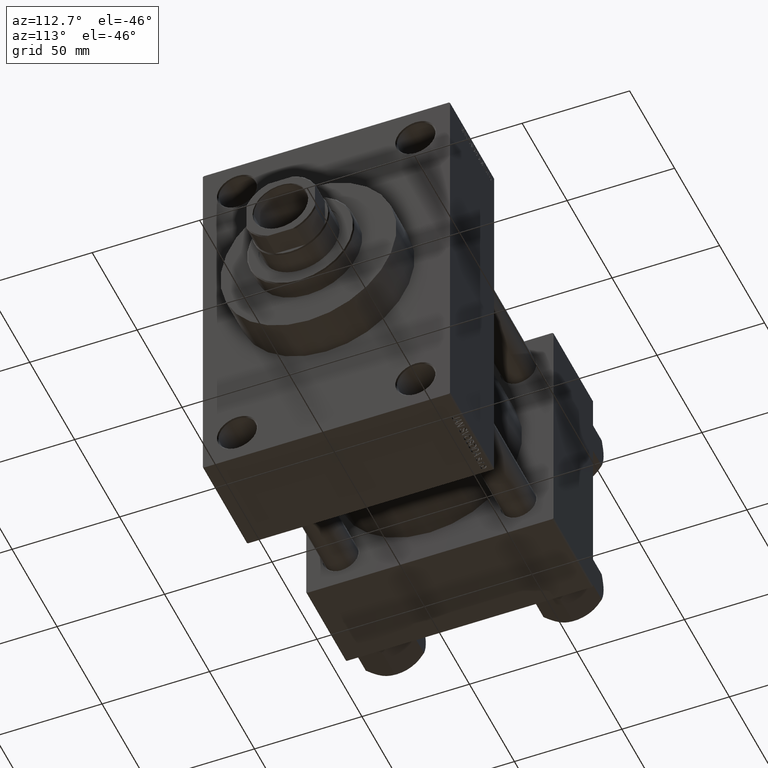
[diagram: clean part render]
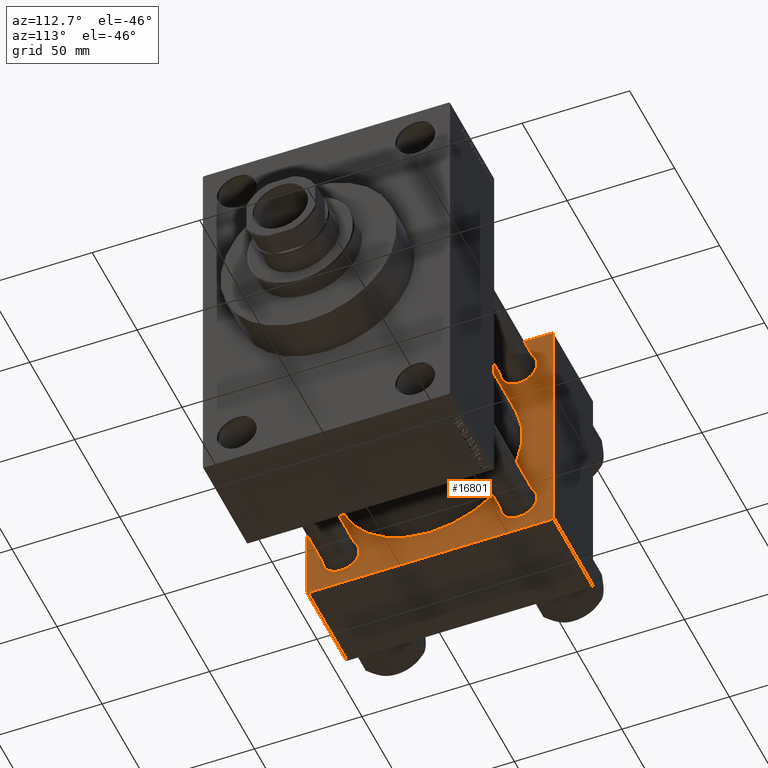
[diagram: same view with one face highlighted and labeled with its STEP entity id]
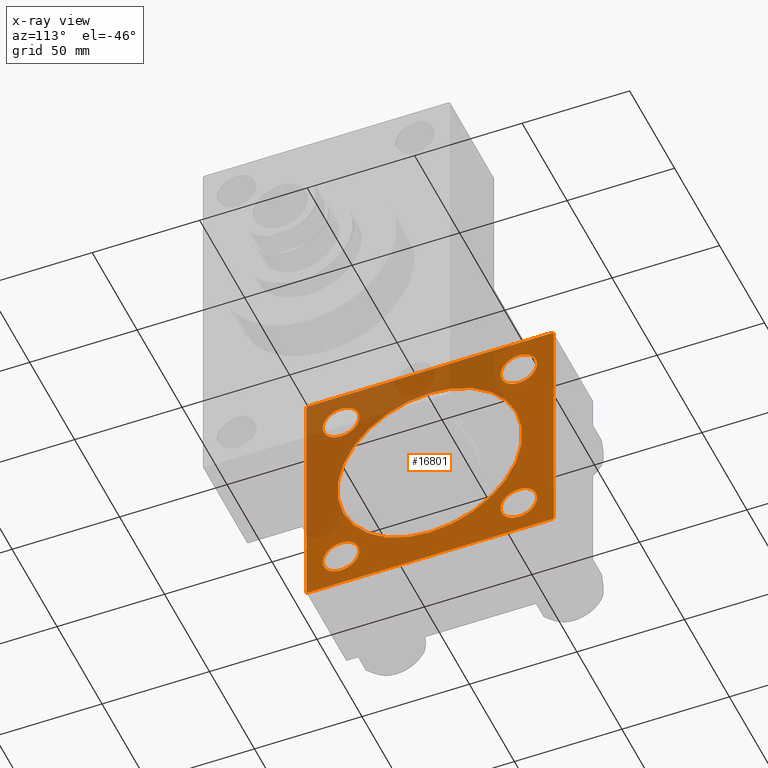
[diagram: x-ray of the same camera — body ghosted, the highlighted face saturated]
A machine part, auxiliary view. The second image highlights one B-rep face of the part: STEP entity #16801.
The next image is the same camera in x-ray: the body ghosted, the highlighted face saturated — about 40% of this face is hidden behind the body in this view.
In plain terms, the highlighted planar face has unit normal (-1, 0, 0).
Its self-contained STEP definition (entity closure, byte-faithful):
#330 = VERTEX_POINT ( 'NONE', #25858 ) ;
#537 = EDGE_CURVE ( 'NONE', #330, #14295, #23865, .T. ) ;
#1250 = CARTESIAN_POINT ( 'NONE',  ( 44.00000000000000000, 57.50000000000000000, 57.50000000000001421 ) ) ;
#1740 = ORIENTED_EDGE ( 'NONE', *, *, #46349, .T. ) ;
#1831 = EDGE_LOOP ( 'NONE', ( #18331, #23161 ) ) ;
#2053 = VECTOR ( 'NONE', #33884, 1000.000000000000000 ) ;
#2339 = ORIENTED_EDGE ( 'NONE', *, *, #44904, .T. ) ;
#2384 = EDGE_LOOP ( 'NONE', ( #39655, #42381 ) ) ;
#2553 = DIRECTION ( 'NONE',  ( 0.000000000000000000, 0.000000000000000000, 1.000000000000000000 ) ) ;
#2824 = AXIS2_PLACEMENT_3D ( 'NONE', #36778, #14106, #28805 ) ;
#2885 = FACE_BOUND ( 'NONE', #2384, .T. ) ;
#3036 = CARTESIAN_POINT ( 'NONE',  ( 44.00000000000000000, -41.34999999999998721, -41.35000000000000142 ) ) ;
#3360 = PLANE ( 'NONE',  #29035 ) ;
#3603 = DIRECTION ( 'NONE',  ( 0.000000000000000000, 0.000000000000000000, 1.000000000000000000 ) ) ;
#3916 = LINE ( 'NONE', #18387, #14370 ) ;
#4354 = DIRECTION ( 'NONE',  ( -1.000000000000000000, 0.000000000000000000, -0.000000000000000000 ) ) ;
#4526 = VERTEX_POINT ( 'NONE', #9548 ) ;
#4572 = ORIENTED_EDGE ( 'NONE', *, *, #15177, .T. ) ;
#4839 = ORIENTED_EDGE ( 'NONE', *, *, #23989, .T. ) ;
#5426 = VECTOR ( 'NONE', #41047, 999.9999999999998863 ) ;
#5695 = CARTESIAN_POINT ( 'NONE',  ( 44.00000000000000000, -41.34999999999998721, -49.85000000000009379 ) ) ;
#5780 = EDGE_LOOP ( 'NONE', ( #1740, #44153 ) ) ;
#5912 = CIRCLE ( 'NONE', #15917, 8.500000000000090594 ) ;
#6033 = DIRECTION ( 'NONE',  ( -0.000000000000000000, 0.000000000000000000, 1.000000000000000000 ) ) ;
#6560 = EDGE_CURVE ( 'NONE', #19290, #4526, #8264, .T. ) ;
#6594 = ORIENTED_EDGE ( 'NONE', *, *, #20691, .F. ) ;
#6885 = EDGE_LOOP ( 'NONE', ( #42268, #2339 ) ) ;
#7137 = VERTEX_POINT ( 'NONE', #17330 ) ;
#7621 = CIRCLE ( 'NONE', #18395, 8.500000000000090594 ) ;
#8217 = CARTESIAN_POINT ( 'NONE',  ( 44.00000000000000000, -41.34999999999998721, 41.35000000000000142 ) ) ;
#8232 = LINE ( 'NONE', #11629, #5426 ) ;
#8264 = LINE ( 'NONE', #11893, #32527 ) ;
#8823 = CIRCLE ( 'NONE', #14980, 8.500000000000090594 ) ;
#9068 = DIRECTION ( 'NONE',  ( 0.000000000000000000, -0.7071067811865573427, 0.7071067811865376918 ) ) ;
#9548 = CARTESIAN_POINT ( 'NONE',  ( 44.00000000000000000, -57.49999999999999289, -57.00000000000003553 ) ) ;
#10023 = AXIS2_PLACEMENT_3D ( 'NONE', #16594, #26969, #12513 ) ;
#10053 = CARTESIAN_POINT ( 'NONE',  ( 44.00000000000000000, 41.34999999999999432, -32.84999999999990905 ) ) ;
#10069 = VERTEX_POINT ( 'NONE', #31197 ) ;
#11300 = EDGE_CURVE ( 'NONE', #21889, #10069, #8823, .T. ) ;
#11400 = DIRECTION ( 'NONE',  ( 0.000000000000000000, -1.000000000000000000, -1.206764157201257291E-16 ) ) ;
#11629 = CARTESIAN_POINT ( 'NONE',  ( 44.00000000000000000, -57.50000000000000000, 56.99999999999997868 ) ) ;
#11893 = CARTESIAN_POINT ( 'NONE',  ( 44.00000000000000000, -57.50000000000000000, 57.49999999999999289 ) ) ;
#12123 = ORIENTED_EDGE ( 'NONE', *, *, #33377, .F. ) ;
#12344 = CARTESIAN_POINT ( 'NONE',  ( 44.00000000000000000, 57.00000000000002842, -57.49999999999999289 ) ) ;
#12513 = DIRECTION ( 'NONE',  ( 0.000000000000000000, 0.000000000000000000, 1.000000000000000000 ) ) ;
#12794 = ORIENTED_EDGE ( 'NONE', *, *, #44796, .F. ) ;
#12925 = LINE ( 'NONE', #35101, #47590 ) ;
#12953 = DIRECTION ( 'NONE',  ( -1.000000000000000000, 0.000000000000000000, -0.000000000000000000 ) ) ;
#13332 = DIRECTION ( 'NONE',  ( -0.000000000000000000, 0.7071067811865328068, 0.7071067811865622277 ) ) ;
#13380 = DIRECTION ( 'NONE',  ( -1.000000000000000000, 0.000000000000000000, -0.000000000000000000 ) ) ;
#13543 = VERTEX_POINT ( 'NONE', #35127 ) ;
#13642 = EDGE_LOOP ( 'NONE', ( #6594, #46794, #41961, #4839, #4572, #35463, #32631, #25064 ) ) ;
#13704 = AXIS2_PLACEMENT_3D ( 'NONE', #3036, #12953, #42608 ) ;
#14106 = DIRECTION ( 'NONE',  ( 1.000000000000000000, -0.000000000000000000, 0.000000000000000000 ) ) ;
#14138 = VERTEX_POINT ( 'NONE', #10053 ) ;
#14295 = VERTEX_POINT ( 'NONE', #17051 ) ;
#14370 = VECTOR ( 'NONE', #11400, 1000.000000000000000 ) ;
#14980 = AXIS2_PLACEMENT_3D ( 'NONE', #8217, #4354, #36267 ) ;
#15069 = LINE ( 'NONE', #33640, #2053 ) ;
#15177 = EDGE_CURVE ( 'NONE', #23922, #23983, #46694, .T. ) ;
#15464 = CIRCLE ( 'NONE', #41641, 8.500000000000090594 ) ;
#15917 = AXIS2_PLACEMENT_3D ( 'NONE', #20840, #13380, #32179 ) ;
#15951 = DIRECTION ( 'NONE',  ( 0.000000000000000000, 0.000000000000000000, -1.000000000000000000 ) ) ;
#16203 = LINE ( 'NONE', #1250, #20761 ) ;
#16435 = EDGE_CURVE ( 'NONE', #14138, #33046, #5912, .T. ) ;
#16594 = CARTESIAN_POINT ( 'NONE',  ( 44.00000000000000000, -41.34999999999998721, 41.35000000000000142 ) ) ;
#16801 = ADVANCED_FACE ( 'NONE', ( #47239, #17124, #43160, #2885, #24345, #17589 ), #3360, .F. ) ;
#16950 = CARTESIAN_POINT ( 'NONE',  ( 44.00000000000000000, 57.50000000000000000, -57.00000000000000000 ) ) ;
#17051 = CARTESIAN_POINT ( 'NONE',  ( 44.00000000000000000, 41.34999999999999432, 32.84999999999990905 ) ) ;
#17124 = FACE_BOUND ( 'NONE', #5780, .T. ) ;
#17330 = CARTESIAN_POINT ( 'NONE',  ( 44.00000000000000000, -2.602085213965210642E-15, 43.00000000000000000 ) ) ;
#17589 = FACE_OUTER_BOUND ( 'NONE', #13642, .T. ) ;
#18331 = ORIENTED_EDGE ( 'NONE', *, *, #36445, .T. ) ;
#18387 = CARTESIAN_POINT ( 'NONE',  ( 44.00000000000000000, 57.50000000000000000, -57.49999999999999289 ) ) ;
#18395 = AXIS2_PLACEMENT_3D ( 'NONE', #25311, #36649, #3603 ) ;
#18787 = DIRECTION ( 'NONE',  ( -1.000000000000000000, 0.000000000000000000, -0.000000000000000000 ) ) ;
#19032 = DIRECTION ( 'NONE',  ( 0.000000000000000000, 0.000000000000000000, 1.000000000000000000 ) ) ;
#19290 = VERTEX_POINT ( 'NONE', #35338 ) ;
#20038 = CIRCLE ( 'NONE', #10023, 8.500000000000090594 ) ;
#20691 = EDGE_CURVE ( 'NONE', #41435, #36304, #3916, .T. ) ;
#20761 = VECTOR ( 'NONE', #15951, 1000.000000000000000 ) ;
#20772 = AXIS2_PLACEMENT_3D ( 'NONE', #35970, #32120, #22631 ) ;
#20840 = CARTESIAN_POINT ( 'NONE',  ( 44.00000000000000000, 41.34999999999999432, -41.34999999999999432 ) ) ;
#21662 = CIRCLE ( 'NONE', #39417, 8.500000000000090594 ) ;
#21826 = CARTESIAN_POINT ( 'NONE',  ( 44.00000000000000000, -41.34999999999998721, 32.84999999999991616 ) ) ;
#21889 = VERTEX_POINT ( 'NONE', #21826 ) ;
#22631 = DIRECTION ( 'NONE',  ( 0.000000000000000000, 0.000000000000000000, 1.000000000000000000 ) ) ;
#22810 = VECTOR ( 'NONE', #43088, 1000.000000000000000 ) ;
#23161 = ORIENTED_EDGE ( 'NONE', *, *, #31704, .T. ) ;
#23865 = CIRCLE ( 'NONE', #39289, 8.500000000000090594 ) ;
#23922 = VERTEX_POINT ( 'NONE', #43624 ) ;
#23983 = VERTEX_POINT ( 'NONE', #38733 ) ;
#23989 = EDGE_CURVE ( 'NONE', #37876, #23922, #12925, .T. ) ;
#24345 = FACE_BOUND ( 'NONE', #27137, .T. ) ;
#25064 = ORIENTED_EDGE ( 'NONE', *, *, #33428, .T. ) ;
#25311 = CARTESIAN_POINT ( 'NONE',  ( 44.00000000000000000, 41.34999999999999432, 41.34999999999999432 ) ) ;
#25858 = CARTESIAN_POINT ( 'NONE',  ( 44.00000000000000000, 41.34999999999999432, 49.85000000000008669 ) ) ;
#26920 = CARTESIAN_POINT ( 'NONE',  ( 44.00000000000000000, 41.34999999999999432, -49.85000000000008669 ) ) ;
#26969 = DIRECTION ( 'NONE',  ( -1.000000000000000000, 0.000000000000000000, -0.000000000000000000 ) ) ;
#27137 = EDGE_LOOP ( 'NONE', ( #12794, #12123 ) ) ;
#27308 = EDGE_CURVE ( 'NONE', #37876, #42506, #16203, .T. ) ;
#27888 = CARTESIAN_POINT ( 'NONE',  ( 44.00000000000000000, -41.34999999999998721, -32.84999999999991616 ) ) ;
#27905 = CARTESIAN_POINT ( 'NONE',  ( 44.00000000000000000, 57.50000000000000000, 57.50000000000001421 ) ) ;
#28805 = DIRECTION ( 'NONE',  ( 0.000000000000000000, 0.000000000000000000, 1.000000000000000000 ) ) ;
#29035 = AXIS2_PLACEMENT_3D ( 'NONE', #32782, #39080, #6033 ) ;
#29079 = CIRCLE ( 'NONE', #13704, 8.500000000000090594 ) ;
#29416 = CARTESIAN_POINT ( 'NONE',  ( 44.00000000000000000, 57.50000000000000000, -56.99999999999997158 ) ) ;
#31197 = CARTESIAN_POINT ( 'NONE',  ( 44.00000000000000000, -41.34999999999998721, 49.85000000000009379 ) ) ;
#31704 = EDGE_CURVE ( 'NONE', #36491, #33219, #21662, .T. ) ;
#32120 = DIRECTION ( 'NONE',  ( 1.000000000000000000, -0.000000000000000000, 0.000000000000000000 ) ) ;
#32179 = DIRECTION ( 'NONE',  ( 0.000000000000000000, 0.000000000000000000, 1.000000000000000000 ) ) ;
#32366 = CARTESIAN_POINT ( 'NONE',  ( 44.00000000000000000, 57.50000000000000000, 57.00000000000004263 ) ) ;
#32527 = VECTOR ( 'NONE', #37696, 1000.000000000000000 ) ;
#32631 = ORIENTED_EDGE ( 'NONE', *, *, #6560, .T. ) ;
#32782 = CARTESIAN_POINT ( 'NONE',  ( 44.00000000000000000, 0.000000000000000000, 0.000000000000000000 ) ) ;
#33046 = VERTEX_POINT ( 'NONE', #26920 ) ;
#33219 = VERTEX_POINT ( 'NONE', #5695 ) ;
#33377 = EDGE_CURVE ( 'NONE', #13543, #7137, #40581, .T. ) ;
#33428 = EDGE_CURVE ( 'NONE', #4526, #36304, #15069, .T. ) ;
#33640 = CARTESIAN_POINT ( 'NONE',  ( 44.00000000000000000, -57.00000000000001421, -57.50000000000000711 ) ) ;
#33884 = DIRECTION ( 'NONE',  ( 0.000000000000000000, 0.7071067811865524577, -0.7071067811865426878 ) ) ;
#35047 = LINE ( 'NONE', #16950, #46844 ) ;
#35101 = CARTESIAN_POINT ( 'NONE',  ( 44.00000000000000000, 57.00000000000001421, 57.50000000000001421 ) ) ;
#35127 = CARTESIAN_POINT ( 'NONE',  ( 44.00000000000000000, 2.663896022368408223E-15, -43.00000000000000000 ) ) ;
#35338 = CARTESIAN_POINT ( 'NONE',  ( 44.00000000000000000, -57.50000000000000000, 56.99999999999997868 ) ) ;
#35352 = CARTESIAN_POINT ( 'NONE',  ( 44.00000000000000000, 41.34999999999999432, -41.34999999999999432 ) ) ;
#35428 = CIRCLE ( 'NONE', #20772, 43.00000000000000000 ) ;
#35463 = ORIENTED_EDGE ( 'NONE', *, *, #45775, .T. ) ;
#35588 = DIRECTION ( 'NONE',  ( -1.000000000000000000, 0.000000000000000000, -0.000000000000000000 ) ) ;
#35970 = CARTESIAN_POINT ( 'NONE',  ( 44.00000000000000000, -2.602085213965210642E-15, 0.000000000000000000 ) ) ;
#36267 = DIRECTION ( 'NONE',  ( 0.000000000000000000, 0.000000000000000000, 1.000000000000000000 ) ) ;
#36304 = VERTEX_POINT ( 'NONE', #44084 ) ;
#36445 = EDGE_CURVE ( 'NONE', #33219, #36491, #29079, .T. ) ;
#36491 = VERTEX_POINT ( 'NONE', #27888 ) ;
#36649 = DIRECTION ( 'NONE',  ( -1.000000000000000000, 0.000000000000000000, -0.000000000000000000 ) ) ;
#36778 = CARTESIAN_POINT ( 'NONE',  ( 44.00000000000000000, -2.602085213965210642E-15, 0.000000000000000000 ) ) ;
#37369 = DIRECTION ( 'NONE',  ( -1.000000000000000000, 0.000000000000000000, -0.000000000000000000 ) ) ;
#37696 = DIRECTION ( 'NONE',  ( 0.000000000000000000, 6.033820786006285224E-17, -1.000000000000000000 ) ) ;
#37842 = CARTESIAN_POINT ( 'NONE',  ( 44.00000000000000000, -41.34999999999998721, -41.35000000000000142 ) ) ;
#37876 = VERTEX_POINT ( 'NONE', #32366 ) ;
#38083 = DIRECTION ( 'NONE',  ( 0.000000000000000000, 0.000000000000000000, 1.000000000000000000 ) ) ;
#38733 = CARTESIAN_POINT ( 'NONE',  ( 44.00000000000000000, -56.99999999999997158, 57.49999999999999289 ) ) ;
#39080 = DIRECTION ( 'NONE',  ( -1.000000000000000000, 0.000000000000000000, -0.000000000000000000 ) ) ;
#39289 = AXIS2_PLACEMENT_3D ( 'NONE', #40762, #37369, #19032 ) ;
#39417 = AXIS2_PLACEMENT_3D ( 'NONE', #37842, #18787, #38083 ) ;
#39655 = ORIENTED_EDGE ( 'NONE', *, *, #42451, .T. ) ;
#40581 = CIRCLE ( 'NONE', #2824, 43.00000000000000000 ) ;
#40762 = CARTESIAN_POINT ( 'NONE',  ( 44.00000000000000000, 41.34999999999999432, 41.34999999999999432 ) ) ;
#41047 = DIRECTION ( 'NONE',  ( -0.000000000000000000, -0.7071067811865574537, -0.7071067811865376918 ) ) ;
#41059 = EDGE_CURVE ( 'NONE', #41435, #42506, #35047, .T. ) ;
#41435 = VERTEX_POINT ( 'NONE', #12344 ) ;
#41641 = AXIS2_PLACEMENT_3D ( 'NONE', #35352, #35588, #2553 ) ;
#41961 = ORIENTED_EDGE ( 'NONE', *, *, #27308, .F. ) ;
#42268 = ORIENTED_EDGE ( 'NONE', *, *, #11300, .T. ) ;
#42381 = ORIENTED_EDGE ( 'NONE', *, *, #537, .T. ) ;
#42451 = EDGE_CURVE ( 'NONE', #14295, #330, #7621, .T. ) ;
#42506 = VERTEX_POINT ( 'NONE', #29416 ) ;
#42608 = DIRECTION ( 'NONE',  ( 0.000000000000000000, 0.000000000000000000, 1.000000000000000000 ) ) ;
#43088 = DIRECTION ( 'NONE',  ( 0.000000000000000000, -1.000000000000000000, -1.810146235801885567E-16 ) ) ;
#43160 = FACE_BOUND ( 'NONE', #6885, .T. ) ;
#43624 = CARTESIAN_POINT ( 'NONE',  ( 44.00000000000000000, 57.00000000000001421, 57.50000000000001421 ) ) ;
#44084 = CARTESIAN_POINT ( 'NONE',  ( 44.00000000000000000, -57.00000000000001421, -57.50000000000000711 ) ) ;
#44153 = ORIENTED_EDGE ( 'NONE', *, *, #16435, .T. ) ;
#44796 = EDGE_CURVE ( 'NONE', #7137, #13543, #35428, .T. ) ;
#44904 = EDGE_CURVE ( 'NONE', #10069, #21889, #20038, .T. ) ;
#45775 = EDGE_CURVE ( 'NONE', #23983, #19290, #8232, .T. ) ;
#46349 = EDGE_CURVE ( 'NONE', #33046, #14138, #15464, .T. ) ;
#46694 = LINE ( 'NONE', #27905, #22810 ) ;
#46794 = ORIENTED_EDGE ( 'NONE', *, *, #41059, .T. ) ;
#46844 = VECTOR ( 'NONE', #13332, 1000.000000000000000 ) ;
#47239 = FACE_BOUND ( 'NONE', #1831, .T. ) ;
#47590 = VECTOR ( 'NONE', #9068, 1000.000000000000114 ) ;